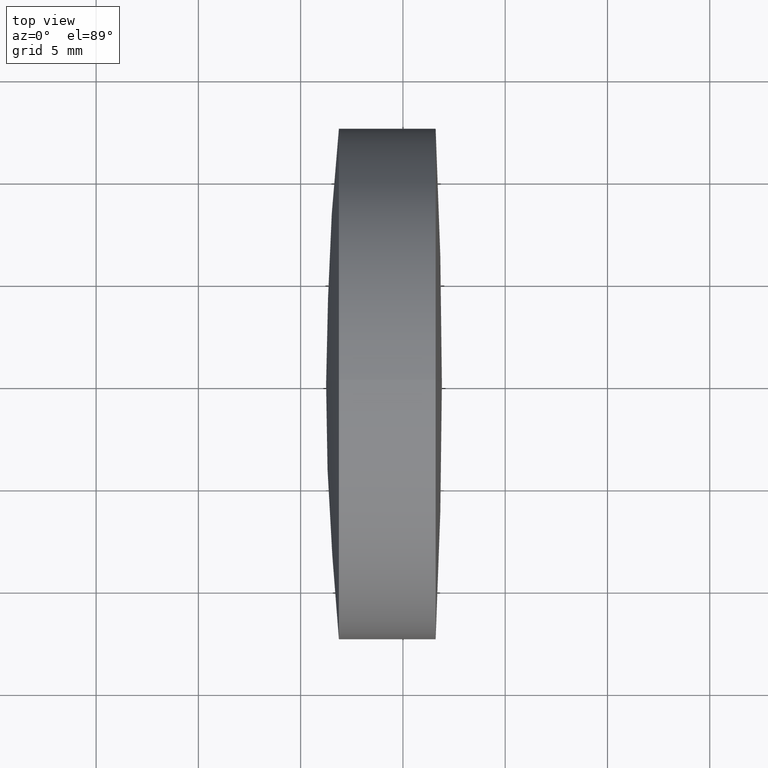
[diagram: clean part render]
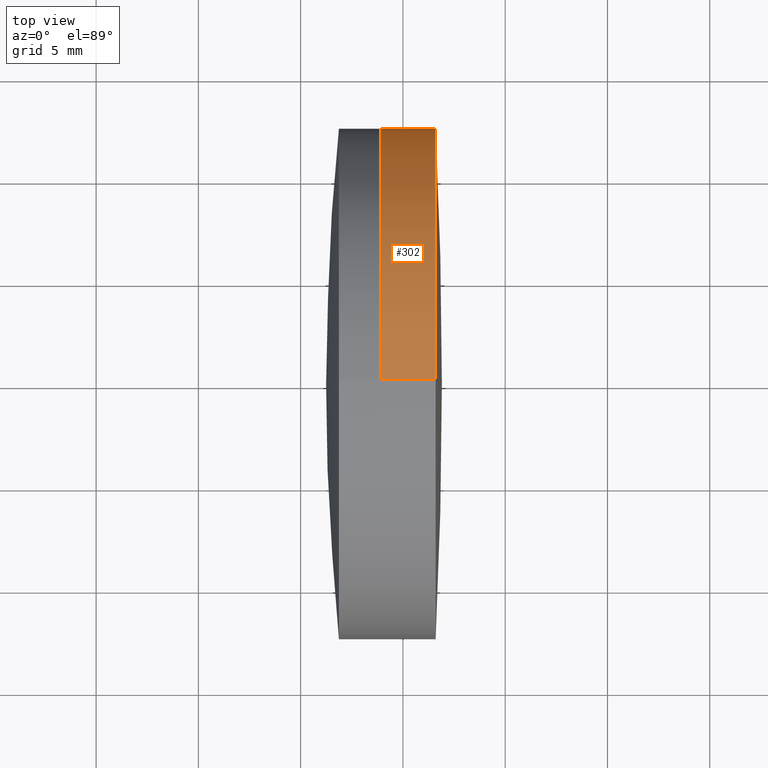
[diagram: same view with one face highlighted and labeled with its STEP entity id]
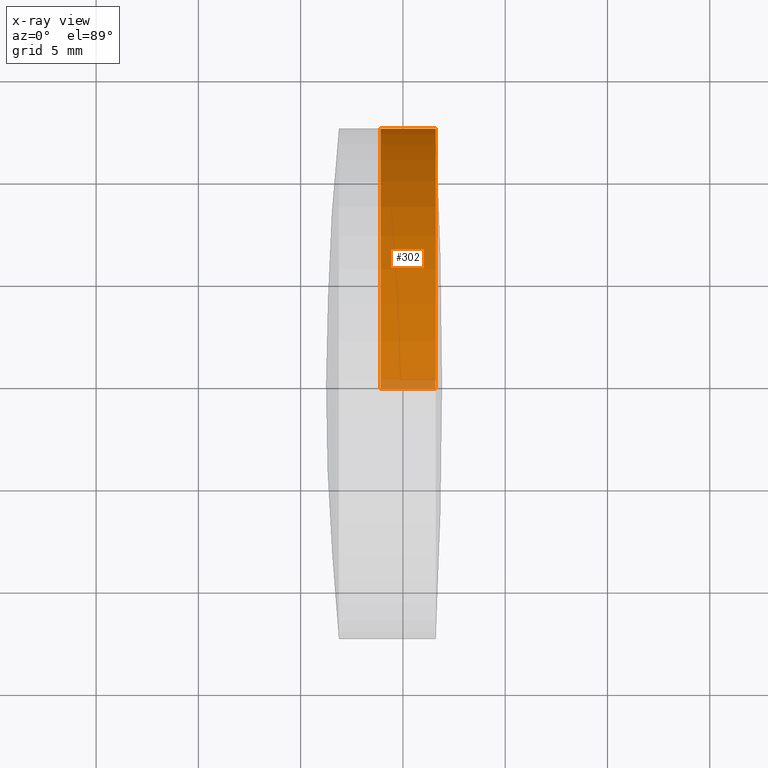
[diagram: x-ray of the same camera — body ghosted, the highlighted face saturated]
A machine part, top view. The second image highlights one B-rep face of the part: STEP entity #302.
The next image is the same camera in x-ray: the body ghosted, the highlighted face saturated — about 3% of this face is hidden behind the body in this view.
In plain terms, the highlighted cylindrical surface (partial cylindrical patch) has radius 12.5 mm, axis along (-1, -0, -0).
Its self-contained STEP definition (entity closure, byte-faithful):
#9 = EDGE_CURVE ( 'NONE', #317, #117, #212, .T. ) ;
#30 = VERTEX_POINT ( 'NONE', #134 ) ;
#39 = CARTESIAN_POINT ( 'NONE',  ( -0.5519199926577972300, 0.0000000000000000000, 12.49999999999999300 ) ) ;
#52 = EDGE_CURVE ( 'NONE', #117, #30, #273, .T. ) ;
#64 = CARTESIAN_POINT ( 'NONE',  ( -0.5519199926577972300, 1.530808498934190500E-015, -12.49999999999999300 ) ) ;
#76 = DIRECTION ( 'NONE',  ( 0.0000000000000000000, 0.0000000000000000000, 1.000000000000000000 ) ) ;
#82 = CARTESIAN_POINT ( 'NONE',  ( 96.59932540629262100, 0.0000000000000000000, 0.0000000000000000000 ) ) ;
#85 = ORIENTED_EDGE ( 'NONE', *, *, #287, .T. ) ;
#91 = CARTESIAN_POINT ( 'NONE',  ( 93.91225861228009800, 0.0000000000000000000, 0.0000000000000000000 ) ) ;
#102 = DIRECTION ( 'NONE',  ( 0.0000000000000000000, 0.0000000000000000000, 1.000000000000000000 ) ) ;
#104 = DIRECTION ( 'NONE',  ( 0.0000000000000000000, 0.0000000000000000000, 1.000000000000000000 ) ) ;
#107 = EDGE_LOOP ( 'NONE', ( #85, #290, #143, #347 ) ) ;
#109 = CARTESIAN_POINT ( 'NONE',  ( 93.91225861228009800, 0.0000000000000000000, 12.50000000000006400 ) ) ;
#113 = AXIS2_PLACEMENT_3D ( 'NONE', #247, #267, #104 ) ;
#117 = VERTEX_POINT ( 'NONE', #109 ) ;
#118 = CARTESIAN_POINT ( 'NONE',  ( 96.59932540629262100, 1.530808498934187000E-015, -12.49999999999993200 ) ) ;
#121 = VECTOR ( 'NONE', #316, 1000.000000000000000 ) ;
#133 = CYLINDRICAL_SURFACE ( 'NONE', #113, 12.49999999999999300 ) ;
#134 = CARTESIAN_POINT ( 'NONE',  ( 93.91225861228009800, 1.530808498934199200E-015, -12.50000000000006400 ) ) ;
#137 = VERTEX_POINT ( 'NONE', #118 ) ;
#143 = ORIENTED_EDGE ( 'NONE', *, *, #52, .F. ) ;
#162 = DIRECTION ( 'NONE',  ( -1.000000000000000000, -0.0000000000000000000, -0.0000000000000000000 ) ) ;
#212 = LINE ( 'NONE', #39, #121 ) ;
#218 = EDGE_CURVE ( 'NONE', #137, #30, #278, .T. ) ;
#221 = DIRECTION ( 'NONE',  ( -1.000000000000000000, -0.0000000000000000000, -0.0000000000000000000 ) ) ;
#227 = AXIS2_PLACEMENT_3D ( 'NONE', #82, #162, #76 ) ;
#247 = CARTESIAN_POINT ( 'NONE',  ( -0.5519199926577972300, 0.0000000000000000000, 0.0000000000000000000 ) ) ;
#248 = AXIS2_PLACEMENT_3D ( 'NONE', #91, #221, #102 ) ;
#266 = DIRECTION ( 'NONE',  ( -1.000000000000000000, -0.0000000000000000000, -0.0000000000000000000 ) ) ;
#267 = DIRECTION ( 'NONE',  ( -1.000000000000000000, -0.0000000000000000000, -0.0000000000000000000 ) ) ;
#270 = CIRCLE ( 'NONE', #227, 12.49999999999993200 ) ;
#273 = CIRCLE ( 'NONE', #248, 12.50000000000005200 ) ;
#278 = LINE ( 'NONE', #64, #281 ) ;
#281 = VECTOR ( 'NONE', #266, 1000.000000000000000 ) ;
#285 = FACE_OUTER_BOUND ( 'NONE', #107, .T. ) ;
#287 = EDGE_CURVE ( 'NONE', #317, #137, #270, .T. ) ;
#290 = ORIENTED_EDGE ( 'NONE', *, *, #218, .T. ) ;
#302 = ADVANCED_FACE ( 'NONE', ( #285 ), #133, .T. ) ;
#316 = DIRECTION ( 'NONE',  ( -1.000000000000000000, -0.0000000000000000000, -0.0000000000000000000 ) ) ;
#317 = VERTEX_POINT ( 'NONE', #337 ) ;
#337 = CARTESIAN_POINT ( 'NONE',  ( 96.59932540629262100, 0.0000000000000000000, 12.49999999999993200 ) ) ;
#347 = ORIENTED_EDGE ( 'NONE', *, *, #9, .F. ) ;